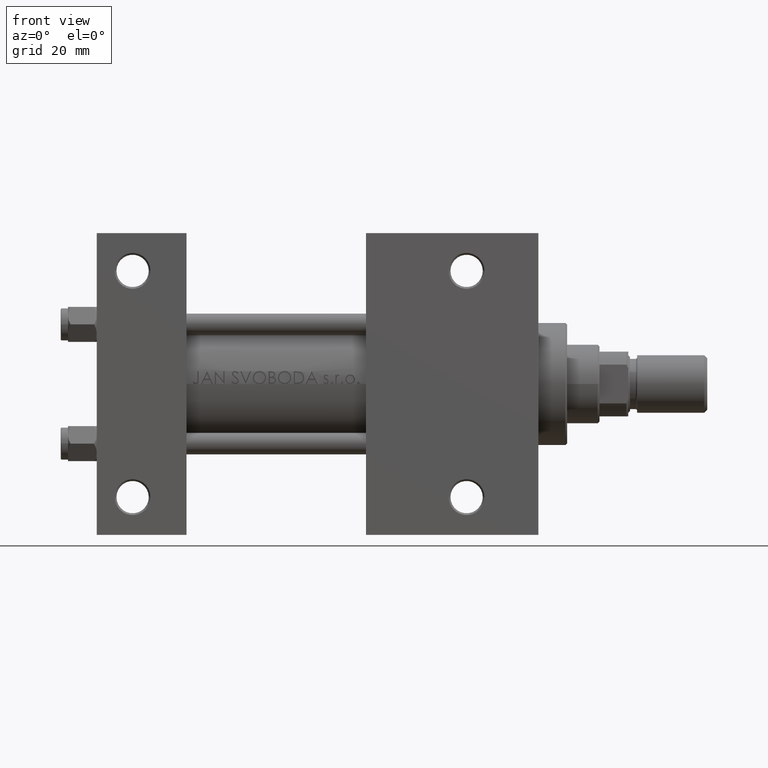
[diagram: clean part render]
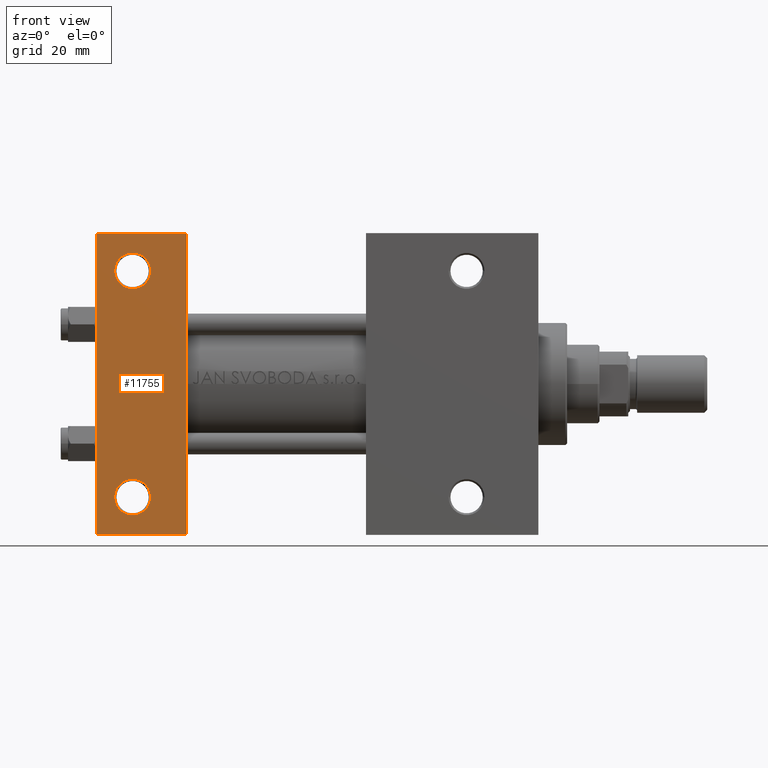
[diagram: same view with one face highlighted and labeled with its STEP entity id]
A machine part, front view. The second image highlights one B-rep face of the part: STEP entity #11755.
In plain terms, the highlighted planar face has unit normal (0, -1, -0).
Its self-contained STEP definition (entity closure, byte-faithful):
#51 = VECTOR ( 'NONE', #24888, 1000.000000000000000 ) ;
#3161 = CARTESIAN_POINT ( 'NONE',  ( -3.595989349422702816E-17, -41.99999999999999289, -22.49999999999999289 ) ) ;
#4499 = DIRECTION ( 'NONE',  ( 0.000000000000000000, 1.000000000000000000, 2.312964634635742957E-16 ) ) ;
#6655 = EDGE_CURVE ( 'NONE', #30762, #41368, #46654, .T. ) ;
#6778 = VECTOR ( 'NONE', #34047, 1000.000000000000000 ) ;
#7403 = EDGE_CURVE ( 'NONE', #31089, #19235, #36439, .T. ) ;
#8043 = CARTESIAN_POINT ( 'NONE',  ( 10.00000000000000000, 31.49999999999998579, -22.49999999999999289 ) ) ;
#8667 = ORIENTED_EDGE ( 'NONE', *, *, #16167, .T. ) ;
#9716 = DIRECTION ( 'NONE',  ( -0.000000000000000000, -2.312964634635742957E-16, 1.000000000000000000 ) ) ;
#9892 = CIRCLE ( 'NONE', #13749, 4.999500000000018041 ) ;
#10050 = CARTESIAN_POINT ( 'NONE',  ( 0.000000000000000000, 22.50000000000000000, -22.49999999999999645 ) ) ;
#10241 = ORIENTED_EDGE ( 'NONE', *, *, #47850, .F. ) ;
#10538 = EDGE_LOOP ( 'NONE', ( #10241, #36450, #44502, #30426 ) ) ;
#11170 = ORIENTED_EDGE ( 'NONE', *, *, #25767, .T. ) ;
#11755 = ADVANCED_FACE ( 'NONE', ( #41667, #30287, #37774 ), #15672, .T. ) ;
#12132 = CARTESIAN_POINT ( 'NONE',  ( -3.595989349422702816E-17, -41.99999999999999289, -22.49999999999999289 ) ) ;
#13749 = AXIS2_PLACEMENT_3D ( 'NONE', #34379, #41901, #19545 ) ;
#13800 = DIRECTION ( 'NONE',  ( -0.000000000000000000, -2.312964634635742957E-16, 1.000000000000000000 ) ) ;
#14483 = CARTESIAN_POINT ( 'NONE',  ( 25.00000000000001066, 42.00000000000001421, -22.50000000000000711 ) ) ;
#15320 = DIRECTION ( 'NONE',  ( -0.000000000000000000, -2.312964634635742957E-16, 1.000000000000000000 ) ) ;
#15672 = PLANE ( 'NONE',  #29745 ) ;
#15880 = VERTEX_POINT ( 'NONE', #14483 ) ;
#16167 = EDGE_CURVE ( 'NONE', #31416, #21907, #37535, .T. ) ;
#16419 = VECTOR ( 'NONE', #20907, 1000.000000000000000 ) ;
#17453 = DIRECTION ( 'NONE',  ( 0.000000000000000000, 1.000000000000000000, 0.000000000000000000 ) ) ;
#18735 = DIRECTION ( 'NONE',  ( 0.000000000000000000, 1.000000000000000000, 0.000000000000000000 ) ) ;
#19235 = VERTEX_POINT ( 'NONE', #12132 ) ;
#19545 = DIRECTION ( 'NONE',  ( 0.000000000000000000, 1.000000000000000000, 0.000000000000000000 ) ) ;
#20198 = AXIS2_PLACEMENT_3D ( 'NONE', #25230, #13800, #17453 ) ;
#20907 = DIRECTION ( 'NONE',  ( -1.000000000000000000, 2.775557561562891351E-16, -0.000000000000000000 ) ) ;
#20956 = VERTEX_POINT ( 'NONE', #34660 ) ;
#21907 = VERTEX_POINT ( 'NONE', #44834 ) ;
#22237 = CARTESIAN_POINT ( 'NONE',  ( 25.00000000000000000, 22.50000000000000000, -22.49999999999999645 ) ) ;
#22860 = LINE ( 'NONE', #44505, #6778 ) ;
#23160 = EDGE_LOOP ( 'NONE', ( #8667, #46919 ) ) ;
#24888 = DIRECTION ( 'NONE',  ( 0.000000000000000000, -1.000000000000000000, -2.312964634635742957E-16 ) ) ;
#25185 = LINE ( 'NONE', #22237, #29587 ) ;
#25230 = CARTESIAN_POINT ( 'NONE',  ( 10.00000000000000000, 31.49999999999998579, -22.49999999999999289 ) ) ;
#25767 = EDGE_CURVE ( 'NONE', #41368, #30762, #9892, .T. ) ;
#25896 = DIRECTION ( 'NONE',  ( 0.000000000000000000, 2.312964634635742957E-16, -1.000000000000000000 ) ) ;
#27031 = EDGE_LOOP ( 'NONE', ( #28797, #11170 ) ) ;
#28797 = ORIENTED_EDGE ( 'NONE', *, *, #6655, .T. ) ;
#29161 = DIRECTION ( 'NONE',  ( 0.000000000000000000, 1.000000000000000000, 0.000000000000000000 ) ) ;
#29587 = VECTOR ( 'NONE', #36113, 1000.000000000000000 ) ;
#29745 = AXIS2_PLACEMENT_3D ( 'NONE', #30519, #25896, #4499 ) ;
#30287 = FACE_BOUND ( 'NONE', #27031, .T. ) ;
#30426 = ORIENTED_EDGE ( 'NONE', *, *, #7403, .T. ) ;
#30519 = CARTESIAN_POINT ( 'NONE',  ( 25.00000000000000000, 22.50000000000000000, -22.49999999999999645 ) ) ;
#30762 = VERTEX_POINT ( 'NONE', #31636 ) ;
#31089 = VERTEX_POINT ( 'NONE', #46277 ) ;
#31416 = VERTEX_POINT ( 'NONE', #45513 ) ;
#31636 = CARTESIAN_POINT ( 'NONE',  ( 5.000499999999979295, -31.50000000000001421, -22.50000000000001066 ) ) ;
#33675 = AXIS2_PLACEMENT_3D ( 'NONE', #8043, #15320, #18735 ) ;
#34047 = DIRECTION ( 'NONE',  ( 1.000000000000000000, 2.775557561562891351E-16, 0.000000000000000000 ) ) ;
#34379 = CARTESIAN_POINT ( 'NONE',  ( 10.00000000000000000, -31.50000000000001421, -22.50000000000001066 ) ) ;
#34660 = CARTESIAN_POINT ( 'NONE',  ( 1.025107321934354758E-14, 42.00000000000000711, -22.50000000000000711 ) ) ;
#34693 = CARTESIAN_POINT ( 'NONE',  ( 14.99950000000002071, -31.50000000000001421, -22.50000000000001066 ) ) ;
#36113 = DIRECTION ( 'NONE',  ( 0.000000000000000000, -1.000000000000000000, -2.312964634635742957E-16 ) ) ;
#36433 = CARTESIAN_POINT ( 'NONE',  ( 10.00000000000000000, -31.50000000000001421, -22.50000000000001066 ) ) ;
#36439 = LINE ( 'NONE', #3161, #16419 ) ;
#36450 = ORIENTED_EDGE ( 'NONE', *, *, #39286, .T. ) ;
#37535 = CIRCLE ( 'NONE', #33675, 4.999500000000018041 ) ;
#37774 = FACE_OUTER_BOUND ( 'NONE', #10538, .T. ) ;
#37800 = EDGE_CURVE ( 'NONE', #15880, #31089, #25185, .T. ) ;
#39286 = EDGE_CURVE ( 'NONE', #20956, #15880, #22860, .T. ) ;
#39938 = LINE ( 'NONE', #10050, #51 ) ;
#41195 = AXIS2_PLACEMENT_3D ( 'NONE', #36433, #9716, #29161 ) ;
#41368 = VERTEX_POINT ( 'NONE', #34693 ) ;
#41667 = FACE_BOUND ( 'NONE', #23160, .T. ) ;
#41901 = DIRECTION ( 'NONE',  ( -0.000000000000000000, -2.312964634635742957E-16, 1.000000000000000000 ) ) ;
#41906 = CIRCLE ( 'NONE', #20198, 4.999500000000018041 ) ;
#44502 = ORIENTED_EDGE ( 'NONE', *, *, #37800, .T. ) ;
#44505 = CARTESIAN_POINT ( 'NONE',  ( 1.025107321934354758E-14, 42.00000000000000711, -22.50000000000000711 ) ) ;
#44834 = CARTESIAN_POINT ( 'NONE',  ( 14.99950000000001715, 31.49999999999998579, -22.49999999999999289 ) ) ;
#45513 = CARTESIAN_POINT ( 'NONE',  ( 5.000499999999981959, 31.49999999999998579, -22.49999999999999289 ) ) ;
#46277 = CARTESIAN_POINT ( 'NONE',  ( 25.00000000000000000, -42.00000000000000000, -22.49999999999999289 ) ) ;
#46485 = EDGE_CURVE ( 'NONE', #21907, #31416, #41906, .T. ) ;
#46654 = CIRCLE ( 'NONE', #41195, 4.999500000000018041 ) ;
#46919 = ORIENTED_EDGE ( 'NONE', *, *, #46485, .T. ) ;
#47850 = EDGE_CURVE ( 'NONE', #20956, #19235, #39938, .T. ) ;